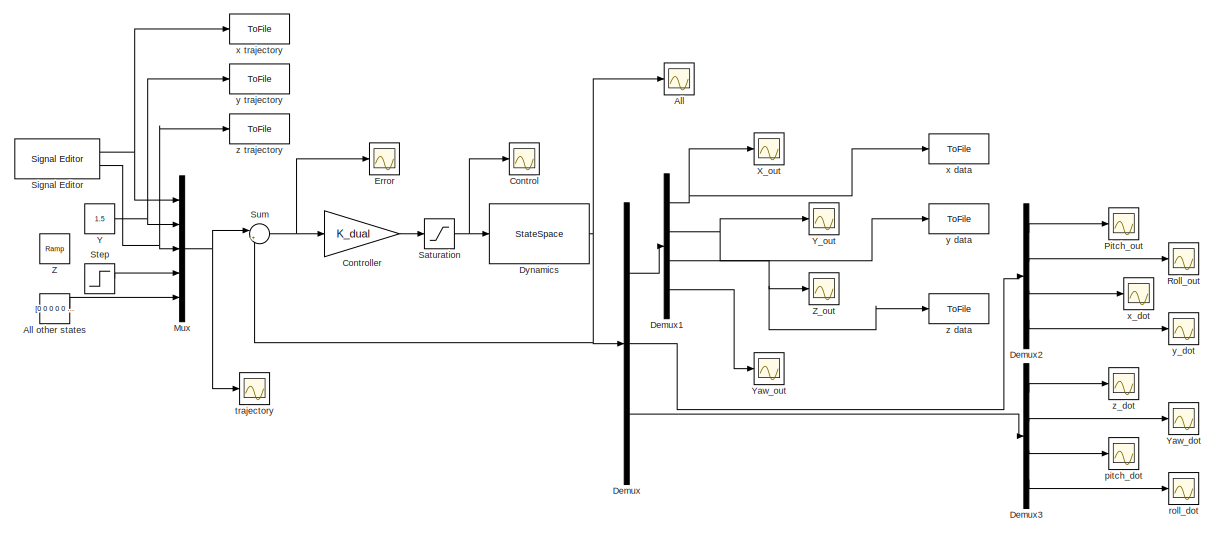
[diagram: root canvas - part 1/2, central region]
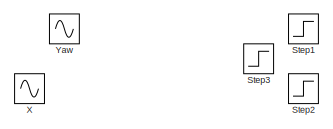
[diagram: root canvas - part 2/2, bottom left region]
MODEL slx_f9e87ef5c83c
KIND model
CONFIG AbsTol = auto
CONFIG EnableMultiTasking = off
CONFIG FixedStep = auto
CONFIG MaxStep = auto
CONFIG MinStep = auto
CONFIG RelTol = 1e-3
CONFIG SampleTimeConstraint = Unconstrained
CONFIG SolverName = VariableStepAuto
CONFIG StartTime = 0.0
CONFIG StopTime = 20
BLOCK [Scope] All
  Floating = off
  NumInputPorts = 1
  Ports = [1]
  ScopeSpecificationString = Simulink.scopes.TimeScopeBlockCfg('CurrentConfiguration', extmgr.ConfigurationSet(extmgr.Configuration('Core','General UI',true),extmgr.Configuration('Core','Source UI',true),extmgr.Configuration('Sources','WiredSimulink',true,'DataLoggingVariableName','ScopeData5'),extmgr.Configuration('Visuals','Time Domain',true,'SerializedDisplays',{struct('MinYLimReal','-3.74952','MaxYLimReal','4.07028','YLab...<+1570ch>
BLOCK [Constant] All other states
  Value = [0 0 0 0 0 0 0 0]'
BLOCK [Scope] Control
  Floating = off
  NumInputPorts = 1
  Ports = [1]
  ScopeSpecificationString = Simulink.scopes.TimeScopeBlockCfg('CurrentConfiguration', extmgr.ConfigurationSet(extmgr.Configuration('Core','General UI',true),extmgr.Configuration('Core','Source UI',true),extmgr.Configuration('Sources','WiredSimulink',true,'DataLoggingVariableName','ScopeData7'),extmgr.Configuration('Visuals','Time Domain',true,'SerializedDisplays',{struct('MinYLimReal','-7625.00000','MaxYLimReal','8625.00000'...<+1569ch>
BLOCK [Gain] Controller
  Gain = K_dual
  Multiplication = Matrix(K*u)
BLOCK [Demux] Demux
  Outputs = 3
  Ports = [1, 3]
BLOCK [Demux] Demux1
  Ports = [1, 4]
BLOCK [Demux] Demux2
  Ports = [1, 4]
BLOCK [Demux] Demux3
  Ports = [1, 4]
BLOCK [StateSpace] Dynamics
  A = A_dual
  B = B_dual
  C = C_dual
  D = D_dual
  InitialCondition = 0
  Ports = [1, 1]
BLOCK [Scope] Error
  Floating = off
  NumInputPorts = 1
  Ports = [1]
  ScopeSpecificationString = Simulink.scopes.TimeScopeBlockCfg('CurrentConfiguration', extmgr.ConfigurationSet(extmgr.Configuration('Core','General UI',true),extmgr.Configuration('Core','Source UI',true),extmgr.Configuration('Sources','WiredSimulink',true,'DataLoggingVariableName','ScopeData4'),extmgr.Configuration('Visuals','Time Domain',true,'SerializedDisplays',{struct('MinYLimReal','-7.48967','MaxYLimReal','7.28351','YLab...<+1487ch>
BLOCK [Mux] Mux
  DisplayOption = bar
  Inputs = 5
  Ports = [5, 1]
BLOCK [Scope] Pitch_out
  Floating = off
  NumInputPorts = 1
  Ports = [1]
  ScopeSpecificationString = Simulink.scopes.TimeScopeBlockCfg('CurrentConfiguration', extmgr.ConfigurationSet(extmgr.Configuration('Core','General UI',true),extmgr.Configuration('Core','Source UI',true),extmgr.Configuration('Sources','WiredSimulink',true,'DataLoggingVariableName','ScopeData8'),extmgr.Configuration('Visuals','Time Domain',true,'SerializedDisplays',{struct('MinYLimReal','-0.05778','MaxYLimReal','0.05836','YLab...<+1416ch>
BLOCK [Scope] Roll_out
  Floating = off
  NumInputPorts = 1
  Ports = [1]
  ScopeSpecificationString = Simulink.scopes.TimeScopeBlockCfg('CurrentConfiguration', extmgr.ConfigurationSet(extmgr.Configuration('Core','General UI',true),extmgr.Configuration('Core','Source UI',true),extmgr.Configuration('Sources','WiredSimulink',true,'DataLoggingVariableName','ScopeData9'),extmgr.Configuration('Visuals','Time Domain',true,'SerializedDisplays',{struct('MinYLimReal','-2.22092','MaxYLimReal','1.90027','YLab...<+1386ch>
BLOCK [Saturate] Saturation
  LowerLimit = -6000
  UpperLimit = 7000
BLOCK [Reference] Signal Editor  REF=SignalEditorBlockLib/Signal Editor
  Ports = [0, 2]
  SourceBlock = SignalEditorBlockLib/Signal Editor
  SourceProductBaseCode = SL
  SourceType = SignalEditor
  UserDataPersistent = on
BLOCK [Step] Step
  After = pi/4
  SampleTime = 0
  Time = 4
BLOCK [Step] Step1
  After = 0
  SampleTime = 0
  Time = 10
BLOCK [Step] Step2
  After = 0
  SampleTime = 0
  Time = 0
BLOCK [Step] Step3
  After = 2
  SampleTime = 0
  Time = 2
BLOCK [Sum] Sum
  Inputs = |+-
  Ports = [2, 1]
BLOCK [Sin] X
  Frequency = 0.25
  Ports = [0, 1]
  SampleTime = 0
BLOCK [Scope] X_out
  Floating = off
  NumInputPorts = 1
  Ports = [1]
  ScopeSpecificationString = Simulink.scopes.TimeScopeBlockCfg('CurrentConfiguration', extmgr.ConfigurationSet(extmgr.Configuration('Core','General UI',true),extmgr.Configuration('Core','Source UI',true),extmgr.Configuration('Sources','WiredSimulink',true),extmgr.Configuration('Visuals','Time Domain',true,'SerializedDisplays',{struct('MinYLimReal','-2.70218','MaxYLimReal','2.61394','YLabelReal','','MinYLimMag','0.00000','MaxY...<+1407ch>
BLOCK [Constant] Y
  Value = 1.5
BLOCK [Scope] Y_out
  Floating = off
  NumInputPorts = 1
  Ports = [1]
  ScopeSpecificationString = Simulink.scopes.TimeScopeBlockCfg('CurrentConfiguration', extmgr.ConfigurationSet(extmgr.Configuration('Core','General UI',true),extmgr.Configuration('Core','Source UI',true),extmgr.Configuration('Sources','WiredSimulink',true,'DataLoggingVariableName','ScopeData1'),extmgr.Configuration('Visuals','Time Domain',true,'SerializedDisplays',{struct('MinYLimReal','-0.20788','MaxYLimReal','1.87095','YLab...<+1418ch>
BLOCK [Sin] Yaw
  Frequency = 0.25
  Ports = [0, 1]
  SampleTime = 0
BLOCK [Scope] Yaw_dot
  Floating = off
  NumInputPorts = 1
  Ports = [1]
  ScopeSpecificationString = Simulink.scopes.TimeScopeBlockCfg('CurrentConfiguration', extmgr.ConfigurationSet(extmgr.Configuration('Core','General UI',true),extmgr.Configuration('Core','Source UI',true),extmgr.Configuration('Sources','WiredSimulink',true,'DataLoggingVariableName','ScopeData13'),extmgr.Configuration('Visuals','Time Domain',true,'SerializedDisplays',{struct('MinYLimReal','-0.31327','MaxYLimReal','0.31953','YLa...<+1368ch>
BLOCK [Scope] Yaw_out
  Floating = off
  NumInputPorts = 1
  Ports = [1]
  ScopeSpecificationString = Simulink.scopes.TimeScopeBlockCfg('CurrentConfiguration', extmgr.ConfigurationSet(extmgr.Configuration('Core','General UI',true),extmgr.Configuration('Core','Source UI',true),extmgr.Configuration('Sources','WiredSimulink',true,'DataLoggingVariableName','ScopeData3'),extmgr.Configuration('Visuals','Time Domain',true,'SerializedDisplays',{struct('MinYLimReal','-0.10238','MaxYLimReal','0.92144','YLab...<+1367ch>
BLOCK [Reference] Z  REF=simulink/Sources/Ramp
  Ports = [0, 1]
  SourceBlock = simulink/Sources/Ramp
  SourceProductBaseCode = SL
  SourceType = Ramp
BLOCK [Scope] Z_out
  Floating = off
  NumInputPorts = 1
  Ports = [1]
  ScopeSpecificationString = Simulink.scopes.TimeScopeBlockCfg('CurrentConfiguration', extmgr.ConfigurationSet(extmgr.Configuration('Core','General UI',true),extmgr.Configuration('Core','Source UI',true),extmgr.Configuration('Sources','WiredSimulink',true,'DataLoggingVariableName','ScopeData2'),extmgr.Configuration('Visuals','Time Domain',true,'SerializedDisplays',{struct('MinYLimReal','-0.17412','MaxYLimReal','1.17383','YLab...<+1398ch>
BLOCK [Scope] pitch_dot
  Floating = off
  NumInputPorts = 1
  Ports = [1]
  ScopeSpecificationString = Simulink.scopes.TimeScopeBlockCfg('CurrentConfiguration', extmgr.ConfigurationSet(extmgr.Configuration('Core','General UI',true),extmgr.Configuration('Core','Source UI',true),extmgr.Configuration('Sources','WiredSimulink',true,'DataLoggingVariableName','ScopeData14'),extmgr.Configuration('Visuals','Time Domain',true,'SerializedDisplays',{struct('MinYLimReal','-0.02891','MaxYLimReal','0.03118','YLa...<+1368ch>
BLOCK [Scope] roll_dot
  Floating = off
  NumInputPorts = 1
  Ports = [1]
  ScopeSpecificationString = Simulink.scopes.TimeScopeBlockCfg('CurrentConfiguration', extmgr.ConfigurationSet(extmgr.Configuration('Core','General UI',true),extmgr.Configuration('Core','Source UI',true),extmgr.Configuration('Sources','WiredSimulink',true,'DataLoggingVariableName','ScopeData15'),extmgr.Configuration('Visuals','Time Domain',true,'SerializedDisplays',{struct('MinYLimReal','-0.000000000000034','MaxYLimReal','0.0...<+1448ch>
BLOCK [Scope] trajectory
  Floating = off
  NumInputPorts = 1
  Ports = [1]
  ScopeSpecificationString = Simulink.scopes.TimeScopeBlockCfg('CurrentConfiguration', extmgr.ConfigurationSet(extmgr.Configuration('Core','General UI',true),extmgr.Configuration('Core','Source UI',true),extmgr.Configuration('Sources','WiredSimulink',true,'DataLoggingVariableName','ScopeData6'),extmgr.Configuration('Visuals','Time Domain',true,'SerializedDisplays',{struct('MinYLimReal','-2.5','MaxYLimReal','2.5','YLabelReal',...<+1546ch>
BLOCK [ToFile] x data
  Filename = x_data.mat
  MatrixName = x
  Ports = [1]
  SaveFormat = Timeseries
BLOCK [ToFile] x trajectory
  Filename = x_traj.mat
  MatrixName = x_traj
  Ports = [1]
  SaveFormat = Timeseries
BLOCK [Scope] x_dot
  Floating = off
  NumInputPorts = 1
  Ports = [1]
  ScopeSpecificationString = Simulink.scopes.TimeScopeBlockCfg('CurrentConfiguration', extmgr.ConfigurationSet(extmgr.Configuration('Core','General UI',true),extmgr.Configuration('Core','Source UI',true),extmgr.Configuration('Sources','WiredSimulink',true,'DataLoggingVariableName','ScopeData10'),extmgr.Configuration('Visuals','Time Domain',true,'SerializedDisplays',{struct('MinYLimReal','-1.21877','MaxYLimReal','0.85419','YLa...<+1368ch>
BLOCK [ToFile] y data
  Filename = y_data.mat
  MatrixName = y
  Ports = [1]
  SaveFormat = Timeseries
BLOCK [ToFile] y trajectory
  Filename = y_traj.mat
  MatrixName = y_traj
  Ports = [1]
  SaveFormat = Timeseries
BLOCK [Scope] y_dot
  Floating = off
  NumInputPorts = 1
  Ports = [1]
  ScopeSpecificationString = Simulink.scopes.TimeScopeBlockCfg('CurrentConfiguration', extmgr.ConfigurationSet(extmgr.Configuration('Core','General UI',true),extmgr.Configuration('Core','Source UI',true),extmgr.Configuration('Sources','WiredSimulink',true,'DataLoggingVariableName','ScopeData11'),extmgr.Configuration('Visuals','Time Domain',true,'SerializedDisplays',{struct('MinYLimReal','-1.76734','MaxYLimReal','6.61001','YLa...<+1368ch>
BLOCK [ToFile] z data
  Filename = z_data.mat
  MatrixName = z
  Ports = [1]
  SaveFormat = Timeseries
BLOCK [ToFile] z trajectory
  Filename = z_traj.mat
  MatrixName = z_traj
  Ports = [1]
  SaveFormat = Timeseries
BLOCK [Scope] z_dot
  Floating = off
  NumInputPorts = 1
  Ports = [1]
  ScopeSpecificationString = Simulink.scopes.TimeScopeBlockCfg('CurrentConfiguration', extmgr.ConfigurationSet(extmgr.Configuration('Core','General UI',true),extmgr.Configuration('Core','Source UI',true),extmgr.Configuration('Sources','WiredSimulink',true,'DataLoggingVariableName','ScopeData12'),extmgr.Configuration('Visuals','Time Domain',true,'SerializedDisplays',{struct('MinYLimReal','-0.13039','MaxYLimReal','1.17353','YLa...<+1368ch>
LINE All other states:1 -> Mux:5
LINE Controller:1 -> Saturation:1
NET Demux1:1 -> X_out:1, x data:1
NET Demux1:2 -> Y_out:1, y data:1
NET Demux1:3 -> Z_out:1, z data:1
LINE Demux1:4 -> Yaw_out:1
LINE Demux2:1 -> Pitch_out:1
LINE Demux2:2 -> Roll_out:1
LINE Demux2:3 -> x_dot:1
LINE Demux2:4 -> y_dot:1
LINE Demux3:1 -> z_dot:1
LINE Demux3:2 -> Yaw_dot:1
LINE Demux3:3 -> pitch_dot:1
LINE Demux3:4 -> roll_dot:1
LINE Demux:1 -> Demux1:1
LINE Demux:2 -> Demux2:1
LINE Demux:3 -> Demux3:1
NET Dynamics:1 -> All:1, Demux:1, Sum:2
NET Mux:1 -> Sum:1, trajectory:1
NET Saturation:1 -> Control:1, Dynamics:1
NET Signal Editor:1 -> Mux:1, x trajectory:1
NET Signal Editor:2 -> Mux:3, z trajectory:1
LINE Step:1 -> Mux:4
NET Sum:1 -> Controller:1, Error:1
NET Y:1 -> Mux:2, y trajectory:1
note: NET lines group one-source signal fan-out (src -> all destinations, sorted); 1:1 wires keep LINE
